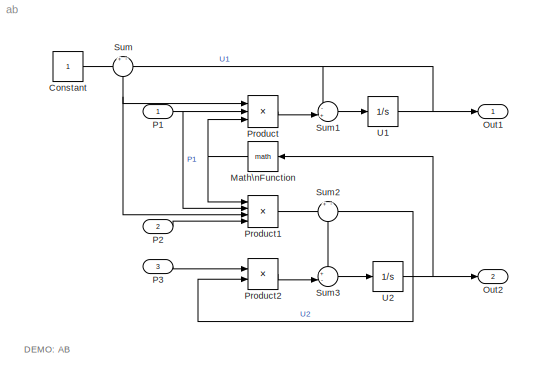
MODEL ab
KIND model
BLOCK [Constant] Constant
  SID = 4
BLOCK [Math] Math\nFunction
  Ports = [1, 1]
  SID = 5
BLOCK [Outport] Out1
  IconDisplay = Port number
  SID = 15
BLOCK [Outport] Out2
  IconDisplay = Port number
  Port = 2
  SID = 16
BLOCK [Inport] P1
  IconDisplay = Port number
  SID = 1
BLOCK [Inport] P2
  IconDisplay = Port number
  Port = 2
  SID = 2
BLOCK [Inport] P3
  IconDisplay = Port number
  Port = 3
  SID = 3
BLOCK [Product] Product
  InputSameDT = off
  Inputs = 3
  OutDataTypeStr = Inherit: Inherit via internal rule
  Ports = [3, 1]
  SID = 6
  SaturateOnIntegerOverflow = off
BLOCK [Product] Product1
  InputSameDT = off
  Inputs = 4
  OutDataTypeStr = Inherit: Inherit via internal rule
  Ports = [4, 1]
  SID = 7
  SaturateOnIntegerOverflow = off
BLOCK [Product] Product2
  InputSameDT = off
  OutDataTypeStr = Inherit: Inherit via internal rule
  Ports = [2, 1]
  SID = 8
  SaturateOnIntegerOverflow = off
BLOCK [Sum] Sum
  IconShape = round
  InputSameDT = off
  Inputs = +-
  OutDataTypeStr = Inherit: Inherit via internal rule
  Ports = [2, 1]
  SID = 9
  SaturateOnIntegerOverflow = off
BLOCK [Sum] Sum1
  IconShape = round
  InputSameDT = off
  Inputs = -+|
  OutDataTypeStr = Inherit: Inherit via internal rule
  Ports = [2, 1]
  SID = 10
  SaturateOnIntegerOverflow = off
BLOCK [Sum] Sum2
  IconShape = round
  InputSameDT = off
  Inputs = +-
  OutDataTypeStr = Inherit: Inherit via internal rule
  Ports = [2, 1]
  SID = 11
  SaturateOnIntegerOverflow = off
BLOCK [Sum] Sum3
  IconShape = round
  InputSameDT = off
  Inputs = +-|
  OutDataTypeStr = Inherit: Inherit via internal rule
  Ports = [2, 1]
  SID = 12
  SaturateOnIntegerOverflow = off
BLOCK [Integrator] U1
  Ports = [1, 1]
  SID = 13
BLOCK [Integrator] U2
  Ports = [1, 1]
  SID = 14
ANNOTATION (root): DEMO: AB
LINE Constant:1 -> Sum:1
NET Math\nFunction:1 -> Product1:1, Product:3
NET P1:1 -> Product1:2, Product:2
LINE P2:1 -> Product1:4
LINE P3:1 -> Product2:1
LINE Product1:1 -> Sum2:1
LINE Product2:1 -> Sum3:2
LINE Product:1 -> Sum1:2
LINE Sum1:1 -> U1:1
LINE Sum2:1 -> Sum3:1
LINE Sum3:1 -> U2:1
NET Sum:1 -> Product1:3, Product:1
NET U1:1 -> Out1:1, Sum1:1, Sum:2
NET U2:1 -> Math\nFunction:1, Out2:1, Product2:2, Sum2:2
note: NET lines group one-source signal fan-out (src -> all destinations, sorted); 1:1 wires keep LINE
